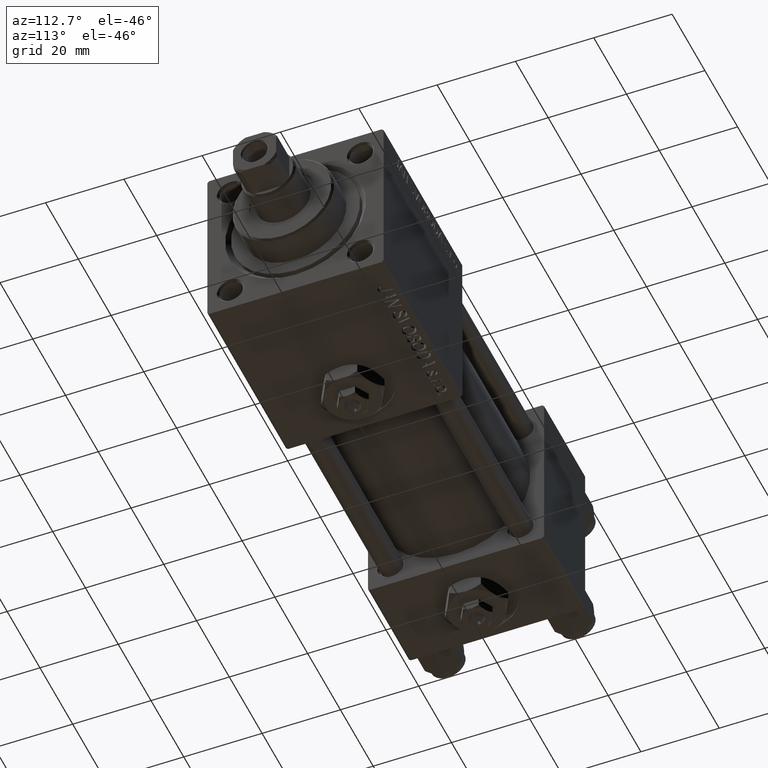
[diagram: clean part render]
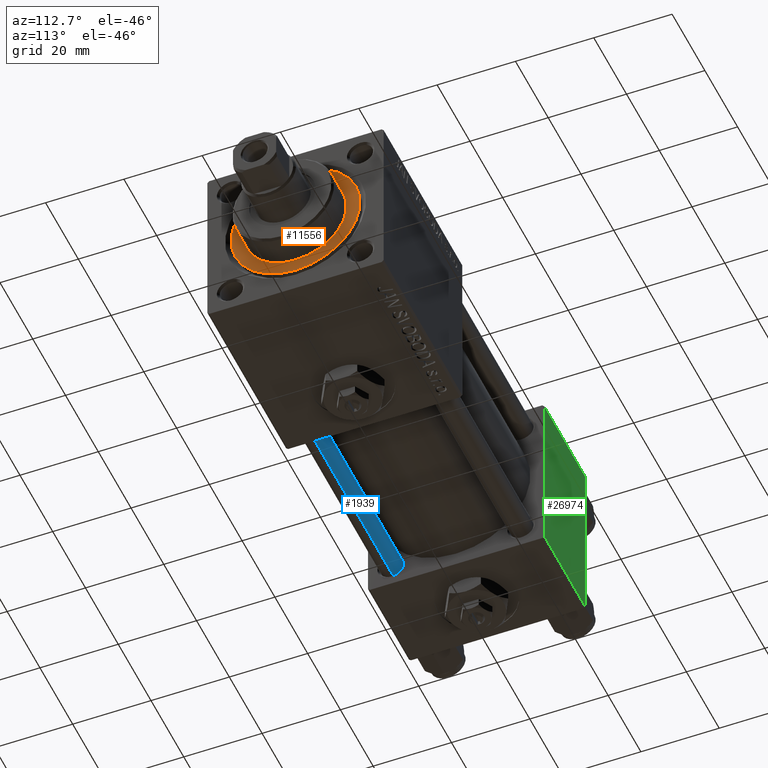
[diagram: same view with three faces highlighted in distinct colors, each labeled with its STEP entity id]
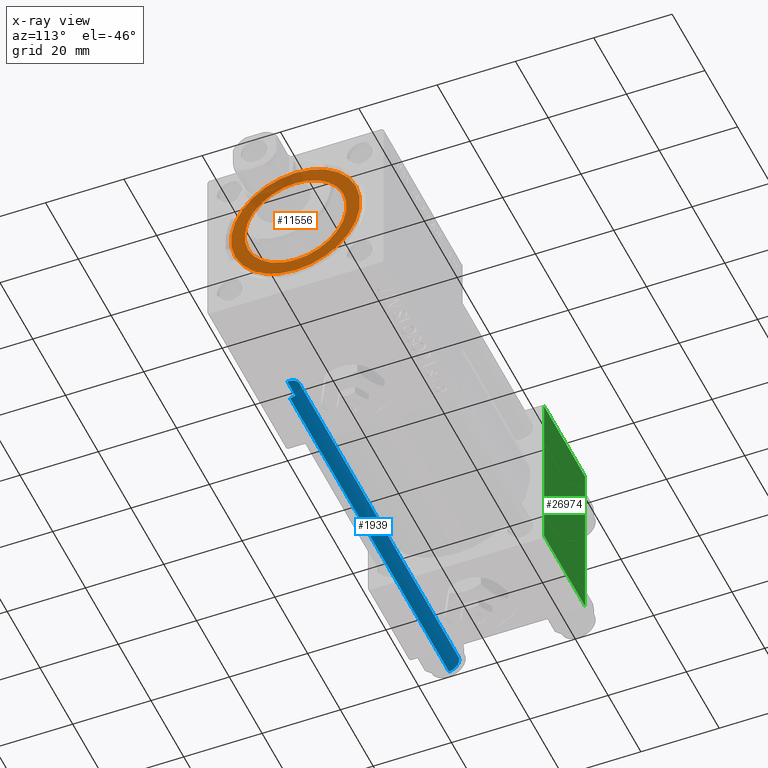
[diagram: x-ray of the same camera — body ghosted, the three highlighted faces saturated]
A machine part, auxiliary view with three faces highlighted in distinct colors.
The next image is the same camera in x-ray (body ghosted, the three faces saturated) — at least one of them is partly hidden behind the body in this view.
Their STEP definitions:

[orange] entity #11556 — the highlighted planar face has unit normal (1, 0, 0).
#505 = AXIS2_PLACEMENT_3D ( 'NONE', #6010, #30033, #21868 ) ;
#983 = CARTESIAN_POINT ( 'NONE',  ( 0.000000000000000000, 0.000000000000000000, 28.69999999999999929 ) ) ;
#2181 = CARTESIAN_POINT ( 'NONE',  ( -16.50000000000000000, 0.000000000000000000, 28.69999999999999929 ) ) ;
#6010 = CARTESIAN_POINT ( 'NONE',  ( 0.000000000000000000, 0.000000000000000000, 28.69999999999999929 ) ) ;
#7145 = AXIS2_PLACEMENT_3D ( 'NONE', #46242, #50733, #10867 ) ;
#10867 = DIRECTION ( 'NONE',  ( 1.000000000000000000, 0.000000000000000000, -0.000000000000000000 ) ) ;
#11556 = ADVANCED_FACE ( 'NONE', ( #46762, #18536 ), #34620, .T. ) ;
#13577 = AXIS2_PLACEMENT_3D ( 'NONE', #983, #29212, #13877 ) ;
#13877 = DIRECTION ( 'NONE',  ( 1.000000000000000000, 0.000000000000000000, 0.000000000000000000 ) ) ;
#14064 = CIRCLE ( 'NONE', #29268, 16.50000000000000000 ) ;
#15827 = CARTESIAN_POINT ( 'NONE',  ( 13.00000000000000178, 1.592040838891559293E-15, 28.69999999999999929 ) ) ;
#18536 = FACE_OUTER_BOUND ( 'NONE', #48727, .T. ) ;
#21162 = EDGE_CURVE ( 'NONE', #51692, #40152, #14064, .T. ) ;
#21868 = DIRECTION ( 'NONE',  ( 1.000000000000000000, 0.000000000000000000, 0.000000000000000000 ) ) ;
#23957 = CARTESIAN_POINT ( 'NONE',  ( 0.000000000000000000, 0.000000000000000000, 28.69999999999999929 ) ) ;
#24108 = ORIENTED_EDGE ( 'NONE', *, *, #34711, .T. ) ;
#26863 = CARTESIAN_POINT ( 'NONE',  ( -13.00000000000000178, 0.000000000000000000, 28.69999999999999929 ) ) ;
#27476 = DIRECTION ( 'NONE',  ( 1.000000000000000000, 0.000000000000000000, 0.000000000000000000 ) ) ;
#27901 = CIRCLE ( 'NONE', #13577, 16.50000000000000000 ) ;
#29212 = DIRECTION ( 'NONE',  ( 0.000000000000000000, 0.000000000000000000, 1.000000000000000000 ) ) ;
#29268 = AXIS2_PLACEMENT_3D ( 'NONE', #46460, #30635, #27476 ) ;
#29590 = AXIS2_PLACEMENT_3D ( 'NONE', #23957, #32651, #32128 ) ;
#30033 = DIRECTION ( 'NONE',  ( 0.000000000000000000, 0.000000000000000000, 1.000000000000000000 ) ) ;
#30442 = CIRCLE ( 'NONE', #29590, 13.00000000000000178 ) ;
#30635 = DIRECTION ( 'NONE',  ( 0.000000000000000000, 0.000000000000000000, 1.000000000000000000 ) ) ;
#32128 = DIRECTION ( 'NONE',  ( 1.000000000000000000, 0.000000000000000000, 0.000000000000000000 ) ) ;
#32651 = DIRECTION ( 'NONE',  ( 0.000000000000000000, 0.000000000000000000, 1.000000000000000000 ) ) ;
#32898 = ORIENTED_EDGE ( 'NONE', *, *, #21162, .T. ) ;
#34620 = PLANE ( 'NONE',  #7145 ) ;
#34704 = EDGE_CURVE ( 'NONE', #49710, #48706, #30442, .T. ) ;
#34711 = EDGE_CURVE ( 'NONE', #40152, #51692, #27901, .T. ) ;
#34852 = CARTESIAN_POINT ( 'NONE',  ( 16.50000000000000000, 2.020667218593133100E-15, 28.69999999999999929 ) ) ;
#35388 = ORIENTED_EDGE ( 'NONE', *, *, #34704, .F. ) ;
#38508 = EDGE_LOOP ( 'NONE', ( #35388, #46921 ) ) ;
#40152 = VERTEX_POINT ( 'NONE', #2181 ) ;
#46242 = CARTESIAN_POINT ( 'NONE',  ( 0.000000000000000000, 0.000000000000000000, 28.69999999999999929 ) ) ;
#46460 = CARTESIAN_POINT ( 'NONE',  ( 0.000000000000000000, 0.000000000000000000, 28.69999999999999929 ) ) ;
#46762 = FACE_BOUND ( 'NONE', #38508, .T. ) ;
#46921 = ORIENTED_EDGE ( 'NONE', *, *, #48969, .F. ) ;
#48530 = CIRCLE ( 'NONE', #505, 13.00000000000000178 ) ;
#48706 = VERTEX_POINT ( 'NONE', #15827 ) ;
#48727 = EDGE_LOOP ( 'NONE', ( #24108, #32898 ) ) ;
#48969 = EDGE_CURVE ( 'NONE', #48706, #49710, #48530, .T. ) ;
#49710 = VERTEX_POINT ( 'NONE', #26863 ) ;
#50733 = DIRECTION ( 'NONE',  ( 0.000000000000000000, 0.000000000000000000, 1.000000000000000000 ) ) ;
#51692 = VERTEX_POINT ( 'NONE', #34852 ) ;

[blue] entity #1939 — the highlighted cylindrical surface (edge-blend (fillet) strip) has radius 3 mm, axis along (-1, -0, -0).
#1095 = CARTESIAN_POINT ( 'NONE',  ( 0.000000000000000000, 0.000000000000000000, 0.5000000000000281997 ) ) ;
#1939 = ADVANCED_FACE ( 'NONE', ( #18129 ), #5737, .T. ) ;
#2261 = CARTESIAN_POINT ( 'NONE',  ( 3.000000000000000444, 3.673940397442060361E-16, 97.50000000000001421 ) ) ;
#5225 = CARTESIAN_POINT ( 'NONE',  ( 0.000000000000000000, 0.000000000000000000, 98.00000000000000000 ) ) ;
#5737 = CYLINDRICAL_SURFACE ( 'NONE', #25459, 3.000000000000000444 ) ;
#6475 = CIRCLE ( 'NONE', #14043, 3.000000000000000444 ) ;
#8741 = DIRECTION ( 'NONE',  ( 1.000000000000000000, 0.000000000000000000, 0.000000000000000000 ) ) ;
#10811 = EDGE_CURVE ( 'NONE', #49978, #17674, #30064, .T. ) ;
#11430 = EDGE_CURVE ( 'NONE', #17674, #19890, #17503, .T. ) ;
#13283 = CARTESIAN_POINT ( 'NONE',  ( -3.000000000000000444, 0.000000000000000000, 98.00000000000000000 ) ) ;
#14043 = AXIS2_PLACEMENT_3D ( 'NONE', #1095, #45668, #8741 ) ;
#14165 = DIRECTION ( 'NONE',  ( -1.000000000000000000, 0.000000000000000000, 0.000000000000000000 ) ) ;
#14954 = VERTEX_POINT ( 'NONE', #47069 ) ;
#15395 = ORIENTED_EDGE ( 'NONE', *, *, #16105, .F. ) ;
#16105 = EDGE_CURVE ( 'NONE', #49978, #14954, #47839, .T. ) ;
#17503 = LINE ( 'NONE', #13283, #39336 ) ;
#17674 = VERTEX_POINT ( 'NONE', #39283 ) ;
#18129 = FACE_OUTER_BOUND ( 'NONE', #40829, .T. ) ;
#19890 = VERTEX_POINT ( 'NONE', #23092 ) ;
#22056 = ORIENTED_EDGE ( 'NONE', *, *, #11430, .T. ) ;
#22496 = AXIS2_PLACEMENT_3D ( 'NONE', #43604, #50993, #34877 ) ;
#23092 = CARTESIAN_POINT ( 'NONE',  ( -3.000000000000000444, 0.000000000000000000, 0.5000000000000281997 ) ) ;
#23569 = DIRECTION ( 'NONE',  ( -0.000000000000000000, -0.000000000000000000, -1.000000000000000000 ) ) ;
#25459 = AXIS2_PLACEMENT_3D ( 'NONE', #5225, #29752, #14165 ) ;
#29752 = DIRECTION ( 'NONE',  ( -0.000000000000000000, -0.000000000000000000, -1.000000000000000000 ) ) ;
#30064 = CIRCLE ( 'NONE', #22496, 3.000000000000000444 ) ;
#34877 = DIRECTION ( 'NONE',  ( 1.000000000000000000, 0.000000000000000000, 0.000000000000000000 ) ) ;
#36781 = DIRECTION ( 'NONE',  ( -0.000000000000000000, -0.000000000000000000, -1.000000000000000000 ) ) ;
#39283 = CARTESIAN_POINT ( 'NONE',  ( -3.000000000000000444, 0.000000000000000000, 97.50000000000001421 ) ) ;
#39336 = VECTOR ( 'NONE', #36781, 1000.000000000000000 ) ;
#39921 = CARTESIAN_POINT ( 'NONE',  ( 3.000000000000000444, 3.673940397442060361E-16, 98.00000000000000000 ) ) ;
#40829 = EDGE_LOOP ( 'NONE', ( #15395, #49430, #22056, #43570 ) ) ;
#43570 = ORIENTED_EDGE ( 'NONE', *, *, #48433, .T. ) ;
#43604 = CARTESIAN_POINT ( 'NONE',  ( 0.000000000000000000, 0.000000000000000000, 97.50000000000001421 ) ) ;
#45095 = VECTOR ( 'NONE', #23569, 1000.000000000000000 ) ;
#45668 = DIRECTION ( 'NONE',  ( -0.000000000000000000, -0.000000000000000000, 1.000000000000000000 ) ) ;
#47069 = CARTESIAN_POINT ( 'NONE',  ( 3.000000000000000444, 3.673940397442060361E-16, 0.5000000000000281997 ) ) ;
#47839 = LINE ( 'NONE', #39921, #45095 ) ;
#48433 = EDGE_CURVE ( 'NONE', #19890, #14954, #6475, .T. ) ;
#49430 = ORIENTED_EDGE ( 'NONE', *, *, #10811, .T. ) ;
#49978 = VERTEX_POINT ( 'NONE', #2261 ) ;
#50993 = DIRECTION ( 'NONE',  ( 0.000000000000000000, 0.000000000000000000, -1.000000000000000000 ) ) ;

[green] entity #26974 — the highlighted planar face has unit normal (0, 1, 0).
#1944 = CARTESIAN_POINT ( 'NONE',  ( 0.000000000000000000, 22.50000000000000000, -21.99999999999996803 ) ) ;
#2659 = CARTESIAN_POINT ( 'NONE',  ( 25.00000000000000000, 22.50000000000000000, 21.99999999999999645 ) ) ;
#4472 = VECTOR ( 'NONE', #29536, 1000.000000000000000 ) ;
#4739 = EDGE_CURVE ( 'NONE', #23884, #41179, #13436, .T. ) ;
#5576 = VECTOR ( 'NONE', #32845, 1000.000000000000000 ) ;
#6026 = CARTESIAN_POINT ( 'NONE',  ( 25.00000000000000000, 22.50000000000000000, 22.50000000000000355 ) ) ;
#9688 = ORIENTED_EDGE ( 'NONE', *, *, #50249, .T. ) ;
#12920 = VERTEX_POINT ( 'NONE', #1944 ) ;
#13300 = LINE ( 'NONE', #28370, #5576 ) ;
#13436 = LINE ( 'NONE', #6026, #4472 ) ;
#15884 = ORIENTED_EDGE ( 'NONE', *, *, #4739, .T. ) ;
#19648 = EDGE_CURVE ( 'NONE', #49421, #12920, #36585, .T. ) ;
#23087 = FACE_OUTER_BOUND ( 'NONE', #31595, .T. ) ;
#23884 = VERTEX_POINT ( 'NONE', #37808 ) ;
#26974 = ADVANCED_FACE ( 'NONE', ( #23087 ), #27305, .T. ) ;
#27305 = PLANE ( 'NONE',  #33661 ) ;
#28156 = CARTESIAN_POINT ( 'NONE',  ( 0.000000000000000000, 22.50000000000000000, 22.50000000000000355 ) ) ;
#28370 = CARTESIAN_POINT ( 'NONE',  ( 25.00000000000000000, 22.50000000000000000, -21.99999999999998224 ) ) ;
#29536 = DIRECTION ( 'NONE',  ( 0.000000000000000000, 0.000000000000000000, -1.000000000000000000 ) ) ;
#30882 = VECTOR ( 'NONE', #32368, 1000.000000000000000 ) ;
#31595 = EDGE_LOOP ( 'NONE', ( #15884, #9688, #45588, #45896 ) ) ;
#32368 = DIRECTION ( 'NONE',  ( 0.000000000000000000, 0.000000000000000000, -1.000000000000000000 ) ) ;
#32795 = EDGE_CURVE ( 'NONE', #49421, #23884, #42507, .T. ) ;
#32845 = DIRECTION ( 'NONE',  ( -1.000000000000000000, 0.000000000000000000, 0.000000000000000000 ) ) ;
#33661 = AXIS2_PLACEMENT_3D ( 'NONE', #47889, #52117, #39180 ) ;
#33728 = VECTOR ( 'NONE', #34067, 1000.000000000000000 ) ;
#34067 = DIRECTION ( 'NONE',  ( 1.000000000000000000, 0.000000000000000000, 0.000000000000000000 ) ) ;
#36585 = LINE ( 'NONE', #28156, #30882 ) ;
#37808 = CARTESIAN_POINT ( 'NONE',  ( 25.00000000000000000, 22.50000000000000000, 21.99999999999999645 ) ) ;
#38275 = CARTESIAN_POINT ( 'NONE',  ( 25.00000000000000000, 22.50000000000000000, -21.99999999999996803 ) ) ;
#39180 = DIRECTION ( 'NONE',  ( 0.000000000000000000, -0.000000000000000000, 1.000000000000000000 ) ) ;
#40744 = CARTESIAN_POINT ( 'NONE',  ( 0.000000000000000000, 22.50000000000000000, 21.99999999999999645 ) ) ;
#41179 = VERTEX_POINT ( 'NONE', #38275 ) ;
#42507 = LINE ( 'NONE', #2659, #33728 ) ;
#45588 = ORIENTED_EDGE ( 'NONE', *, *, #19648, .F. ) ;
#45896 = ORIENTED_EDGE ( 'NONE', *, *, #32795, .T. ) ;
#47889 = CARTESIAN_POINT ( 'NONE',  ( 25.00000000000000000, 22.50000000000000000, 22.50000000000000355 ) ) ;
#49421 = VERTEX_POINT ( 'NONE', #40744 ) ;
#50249 = EDGE_CURVE ( 'NONE', #41179, #12920, #13300, .T. ) ;
#52117 = DIRECTION ( 'NONE',  ( -0.000000000000000000, 1.000000000000000000, 0.000000000000000000 ) ) ;